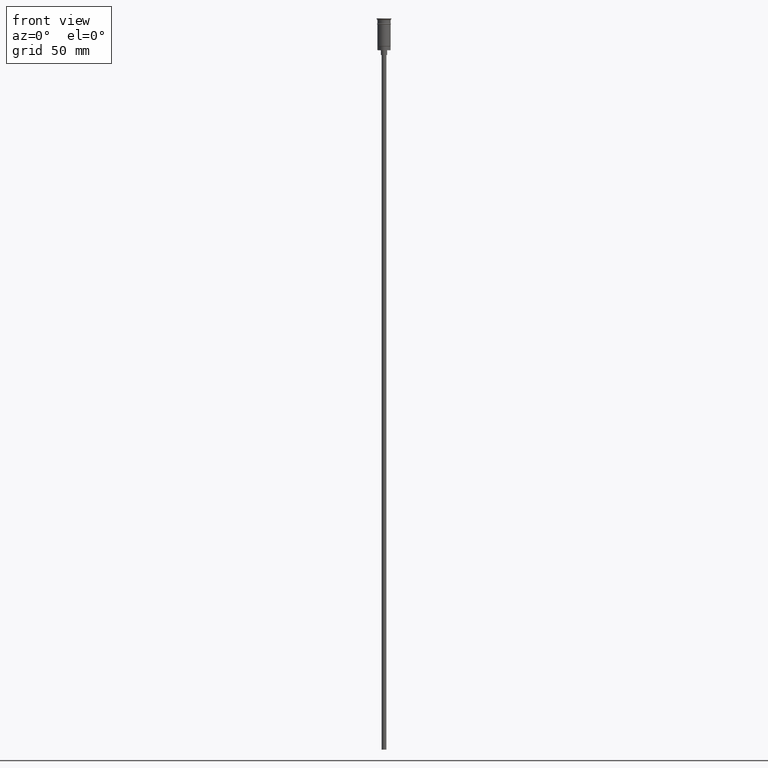
[diagram: clean part render]
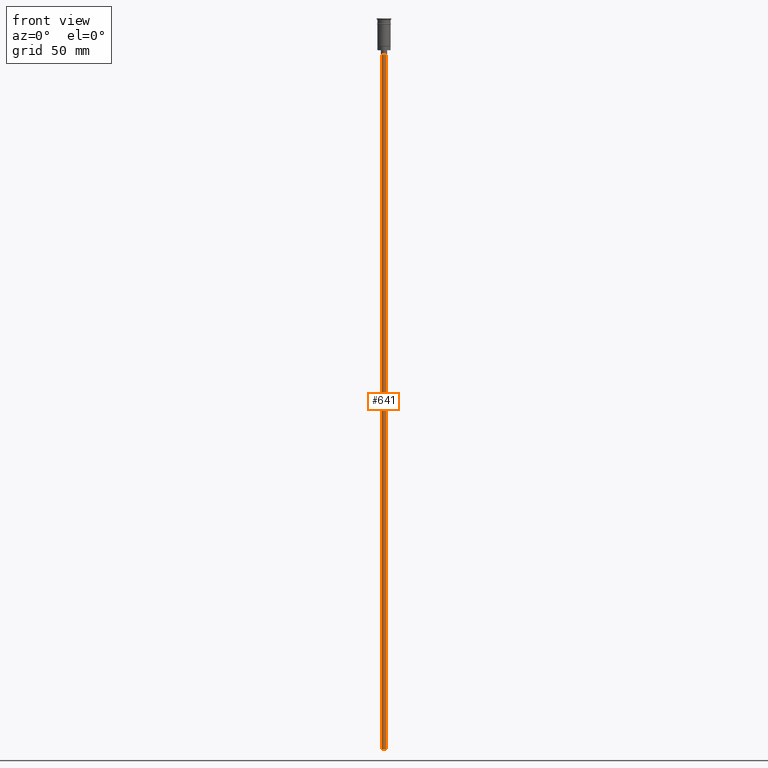
[diagram: same view with one face highlighted and labeled with its STEP entity id]
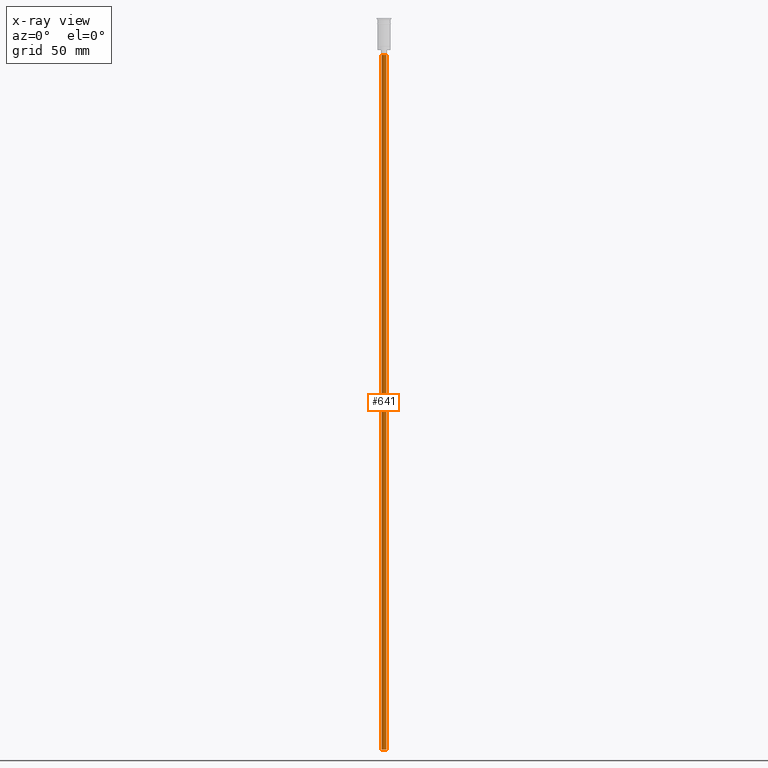
[diagram: x-ray of the same camera — body ghosted, the highlighted face saturated]
A machine part, front view. The second image highlights one B-rep face of the part: STEP entity #641.
The next image is the same camera in x-ray: the body ghosted, the highlighted face saturated — about 0% of this face is hidden behind the body in this view.
In plain terms, the highlighted cylindrical surface (edge-blend (fillet) strip) has radius 1.5 mm, axis along (-0, -0, 1).
Its self-contained STEP definition (entity closure, byte-faithful):
#6 = CARTESIAN_POINT ( 'NONE',  ( 0.000000000000000000, 0.000000000000000000, -23.49999999999999645 ) ) ;
#85 = AXIS2_PLACEMENT_3D ( 'NONE', #86, #1064, #1423 ) ;
#86 = CARTESIAN_POINT ( 'NONE',  ( 0.000000000000000000, 0.000000000000000000, -470.5000000000000568 ) ) ;
#109 = LINE ( 'NONE', #606, #1271 ) ;
#162 = EDGE_LOOP ( 'NONE', ( #751, #369, #907, #495 ) ) ;
#197 = EDGE_CURVE ( 'NONE', #972, #778, #1377, .T. ) ;
#201 = CYLINDRICAL_SURFACE ( 'NONE', #781, 1.500000000000000222 ) ;
#219 = DIRECTION ( 'NONE',  ( -0.000000000000000000, -0.000000000000000000, 1.000000000000000000 ) ) ;
#245 = LINE ( 'NONE', #1312, #1066 ) ;
#277 = CARTESIAN_POINT ( 'NONE',  ( -1.500000000000000222, 1.836970198721030181E-16, -470.5000000000000568 ) ) ;
#311 = CARTESIAN_POINT ( 'NONE',  ( 1.500000000000000222, 0.000000000000000000, -470.5000000000000568 ) ) ;
#369 = ORIENTED_EDGE ( 'NONE', *, *, #197, .F. ) ;
#475 = DIRECTION ( 'NONE',  ( -0.000000000000000000, -0.000000000000000000, 1.000000000000000000 ) ) ;
#495 = ORIENTED_EDGE ( 'NONE', *, *, #1106, .T. ) ;
#534 = EDGE_CURVE ( 'NONE', #972, #1385, #109, .T. ) ;
#567 = VERTEX_POINT ( 'NONE', #1128 ) ;
#606 = CARTESIAN_POINT ( 'NONE',  ( 1.500000000000000222, 0.000000000000000000, -470.5000000000000568 ) ) ;
#612 = CIRCLE ( 'NONE', #1301, 1.500000000000000222 ) ;
#641 = ADVANCED_FACE ( 'NONE', ( #1540 ), #201, .T. ) ;
#751 = ORIENTED_EDGE ( 'NONE', *, *, #1578, .F. ) ;
#755 = DIRECTION ( 'NONE',  ( -1.000000000000000000, 0.000000000000000000, 0.000000000000000000 ) ) ;
#778 = VERTEX_POINT ( 'NONE', #277 ) ;
#781 = AXIS2_PLACEMENT_3D ( 'NONE', #1181, #219, #802 ) ;
#802 = DIRECTION ( 'NONE',  ( 1.000000000000000000, 0.000000000000000000, 0.000000000000000000 ) ) ;
#907 = ORIENTED_EDGE ( 'NONE', *, *, #534, .T. ) ;
#972 = VERTEX_POINT ( 'NONE', #311 ) ;
#1064 = DIRECTION ( 'NONE',  ( 0.000000000000000000, 0.000000000000000000, -1.000000000000000000 ) ) ;
#1066 = VECTOR ( 'NONE', #475, 1000.000000000000000 ) ;
#1099 = DIRECTION ( 'NONE',  ( 0.000000000000000000, 0.000000000000000000, -1.000000000000000000 ) ) ;
#1106 = EDGE_CURVE ( 'NONE', #1385, #567, #612, .T. ) ;
#1113 = CARTESIAN_POINT ( 'NONE',  ( 1.500000000000000222, 0.000000000000000000, -23.49999999999999645 ) ) ;
#1128 = CARTESIAN_POINT ( 'NONE',  ( -1.500000000000000222, 1.836970198721030181E-16, -23.49999999999999645 ) ) ;
#1181 = CARTESIAN_POINT ( 'NONE',  ( 0.000000000000000000, 0.000000000000000000, -470.5000000000000568 ) ) ;
#1271 = VECTOR ( 'NONE', #1593, 1000.000000000000000 ) ;
#1301 = AXIS2_PLACEMENT_3D ( 'NONE', #6, #1099, #755 ) ;
#1312 = CARTESIAN_POINT ( 'NONE',  ( -1.500000000000000222, 1.836970198721030181E-16, -470.5000000000000568 ) ) ;
#1377 = CIRCLE ( 'NONE', #85, 1.500000000000000222 ) ;
#1385 = VERTEX_POINT ( 'NONE', #1113 ) ;
#1423 = DIRECTION ( 'NONE',  ( -1.000000000000000000, 0.000000000000000000, 0.000000000000000000 ) ) ;
#1540 = FACE_OUTER_BOUND ( 'NONE', #162, .T. ) ;
#1578 = EDGE_CURVE ( 'NONE', #778, #567, #245, .T. ) ;
#1593 = DIRECTION ( 'NONE',  ( -0.000000000000000000, -0.000000000000000000, 1.000000000000000000 ) ) ;